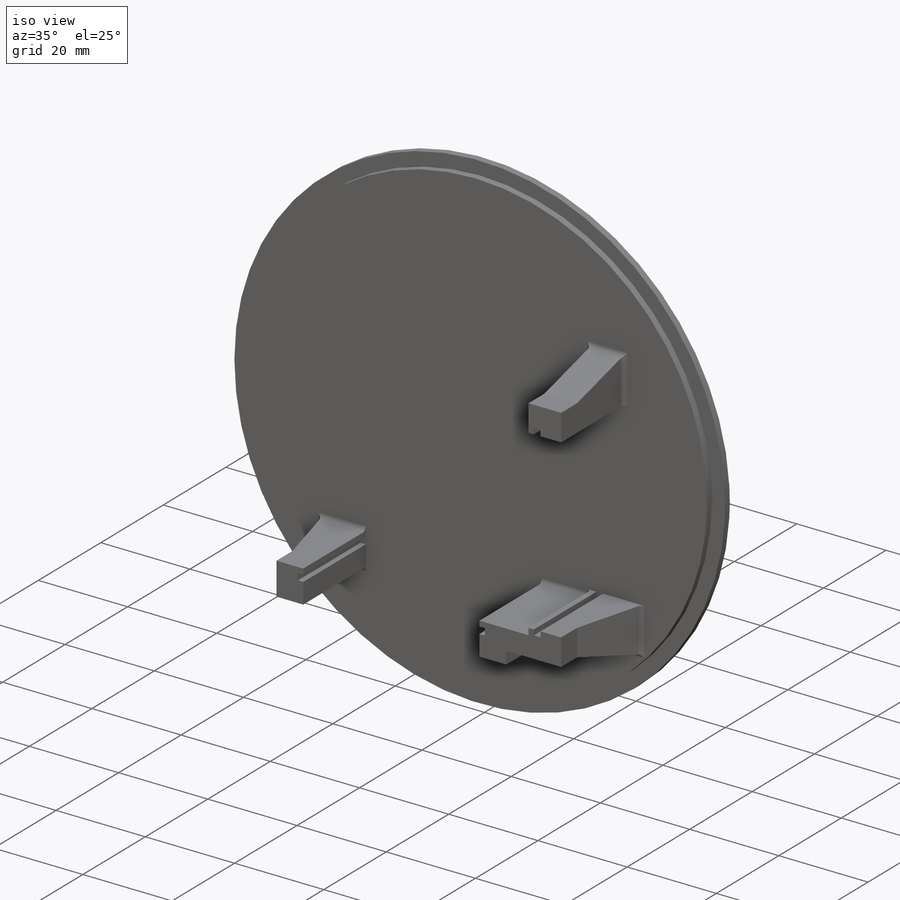
[diagram: iso view]
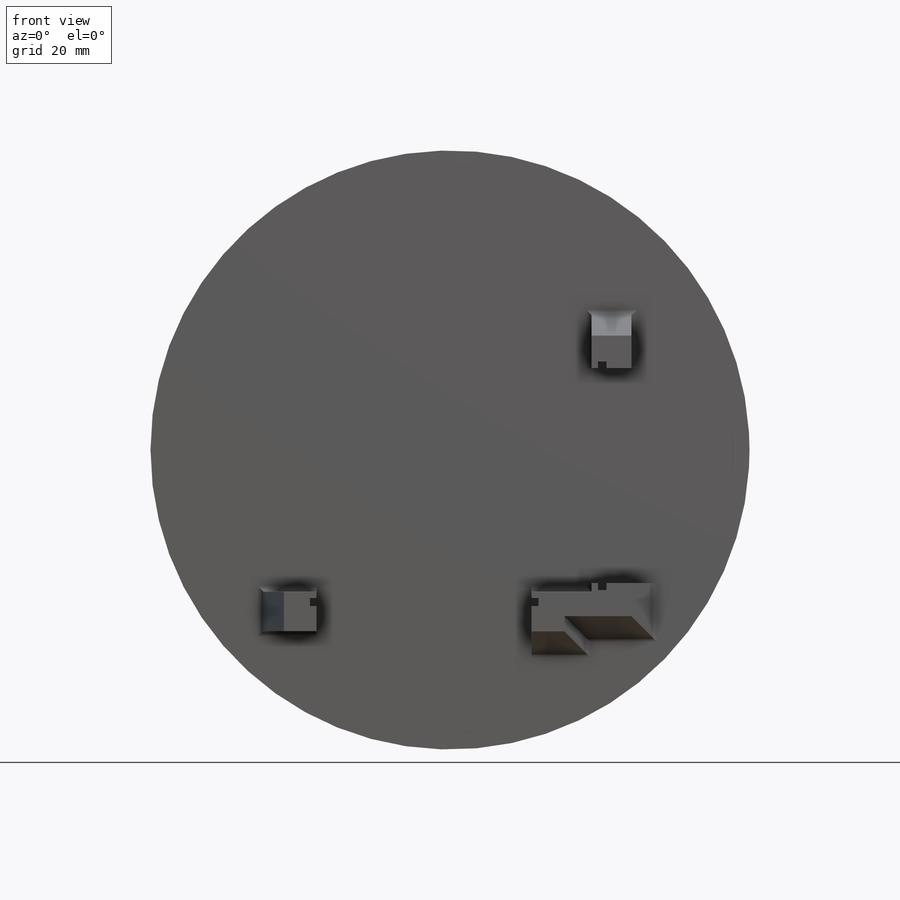
[diagram: front view]
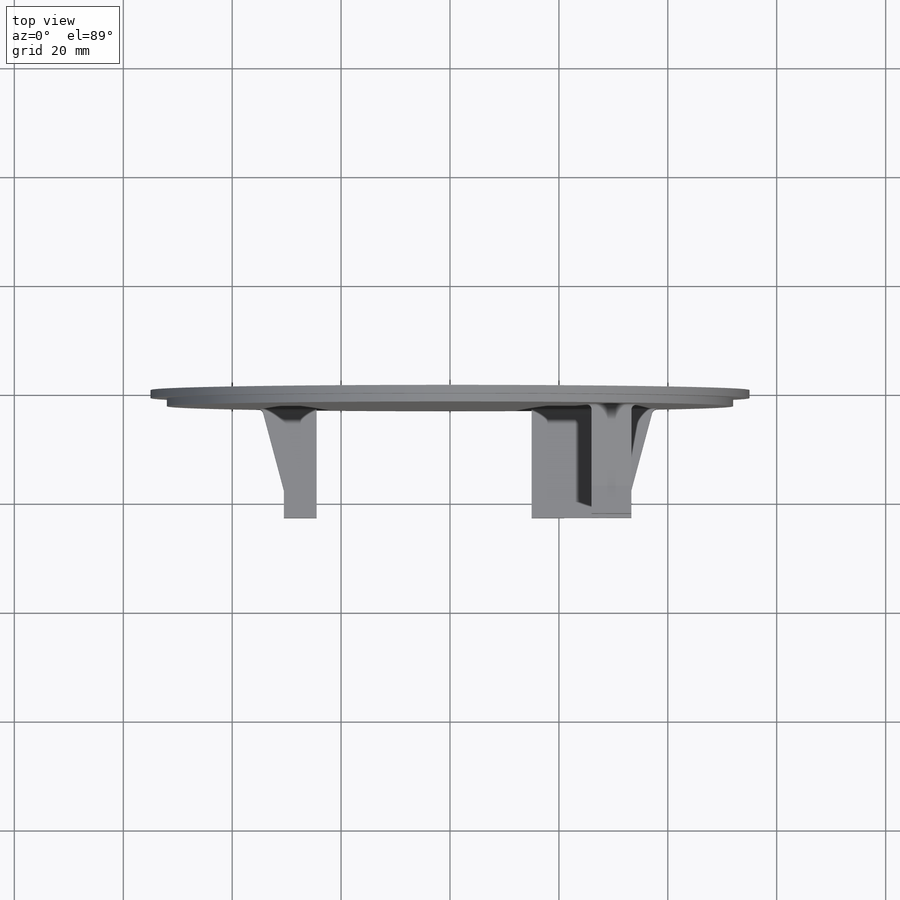
[diagram: top view]
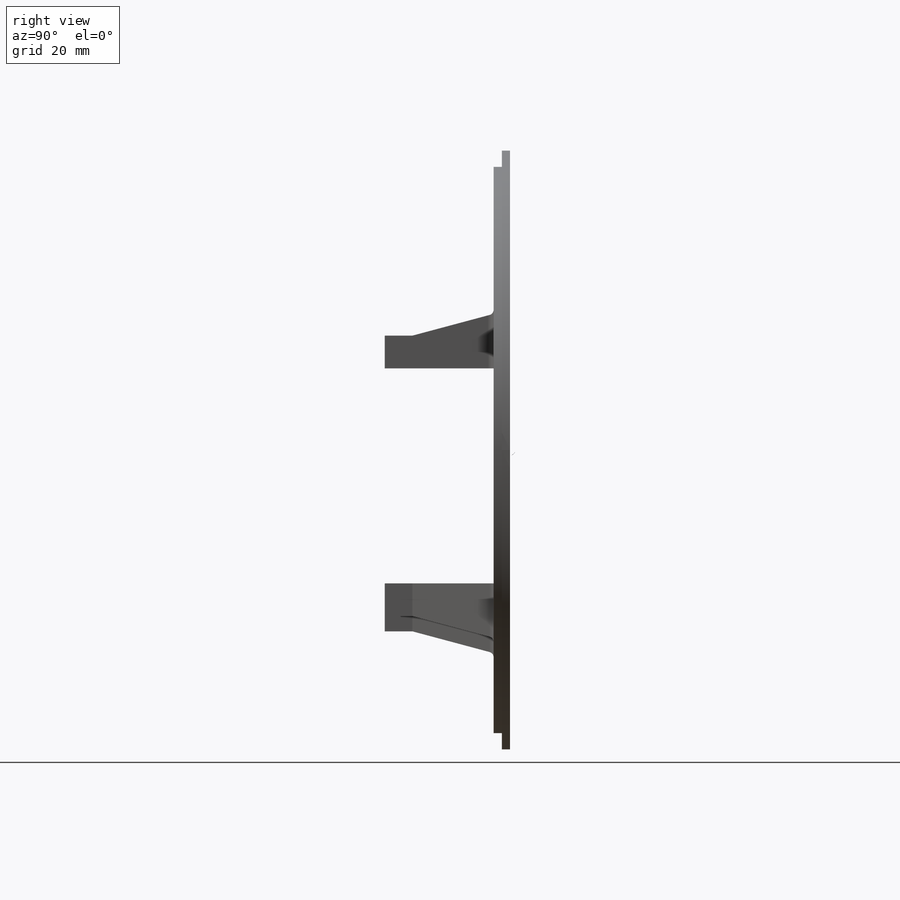
[diagram: right view]
SOLIDWORKS PART (.sldprt)
format: sldprt  version: not decoded by parser v0  size: 313,856 bytes
history: native  units: mm
features: sketch x4, plane x3, extrude x3, chamfer x2, material x1, fillet x1, cut_extrude x1 (+9 scaffold rows collapsed)
feature tree (24):
  scaffold x9  (default folders/planes/origin — collapsed)
  material  "ABS"
  plane  "Ebene vorne"
  plane  "Ebene oben"
  plane  "Ebene rechts"
  sketch  "Skizze1"  dims[c1.D1=110.0mm c1.D2=~102.009461mm c1.D5=6.0mm c1.D6=~1.052817mm c1.D3=6.0mm c1.D4=6.0mm c2.D6=6.0mm c2.D10=6.0mm c2.D12=~7.222396mm c3.D10=~7.139733mm c3.D7=6.0mm c3.D4=6.0mm c3.D2=3.0mm c3.D3=42.5mm c4.D4=66.5mm c4.D5=~18.673555mm c5.D4=60.5mm c5.D5=54.5mm c5.D7=58.0mm c5.D8=63.5mm c5.D9=83.5mm c5.D10=83.5mm c6.D4=55.0mm c6.D5=26.5mm c6.D7=61.5mm c6.D8=84.0mm c6.D9=26.5mm c6.D10=64.5mm c6.D11=62.5mm]
  extrude  "Aufsatz-Linear austragen1"  Depth=3mm
  extrude  "Aufsatz-Linear austragen2"  [1 undecoded]
  sketch  "Skizze1<3>"  dims[D1=1.5mm]
  sketch  "Skizze2"  dims[c1.D1=7.3mm c1.D2=1.5mm c1.D3=1.2mm c1.D4=39.5mm c1.D5=6.0mm c1.D6=1.2mm c1.D7=1.2mm c1.D8=7.3mm c2.D4=15.0mm c2.D8=19.75mm c2.D9=26.0mm c2.D10=6.0mm c2.D6=2.0]
  extrude  "Aufsatz-Linear austragen5"  Depth=20mm
  chamfer  "Fase2"  Distance=4mm Angle=75deg
  chamfer  "Fase3"  Distance=4mm Angle=75deg
  fillet  "Verrundung1"  Radius=1mm
  sketch  "Skizze3"  dims[D1=3.2mm D2=3.2mm D3=3.2mm]
  cut_extrude  "Schnitt-Linear austragen1"  [1 undecoded]
decode coverage: 9 of 11 modeling features carry decoded parameters
note: ~ marks probable driven/reference dimensions
note: 2 parameter values undecoded
note: suppression state not decoded; provenance and decode notes live in map.json
